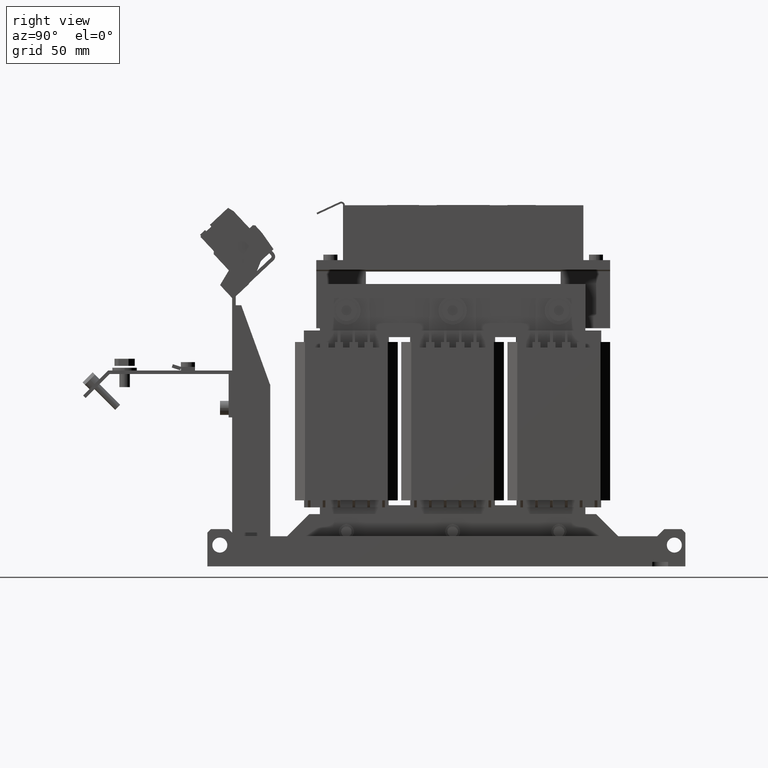
[diagram: clean part render]
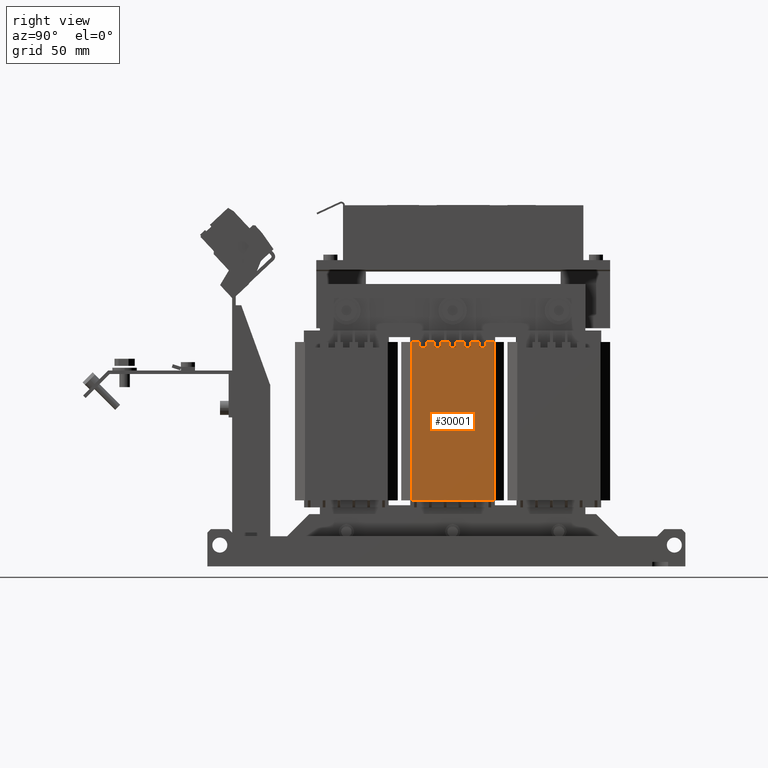
[diagram: same view with one face highlighted and labeled with its STEP entity id]
A machine part, right view. The second image highlights one B-rep face of the part: STEP entity #30001.
In plain terms, the highlighted planar face has unit normal (1, 0, 0).
Its self-contained STEP definition (entity closure, byte-faithful):
#14760=DIRECTION('',(0.E0,1.E0,0.E0));
#14761=VECTOR('',#14760,4.691967361942E0);
#14762=CARTESIAN_POINT('',(4.369999999995E1,-1.984196736194E1,1.242E2));
#14763=LINE('',#14762,#14761);
#14872=DIRECTION('',(0.E0,1.E0,0.E0));
#14873=VECTOR('',#14872,4.691967361942E0);
#14874=CARTESIAN_POINT('',(4.369999999995E1,2.215E1,1.242E2));
#14875=LINE('',#14874,#14873);
#14888=DIRECTION('',(0.E0,1.E0,0.E0));
#14889=VECTOR('',#14888,4.7E0);
#14890=CARTESIAN_POINT('',(4.369999999995E1,1.375E1,1.242E2));
#14891=LINE('',#14890,#14889);
#14904=DIRECTION('',(0.E0,1.E0,0.E0));
#14905=VECTOR('',#14904,4.7E0);
#14906=CARTESIAN_POINT('',(4.369999999995E1,5.35E0,1.242E2));
#14907=LINE('',#14906,#14905);
#14920=DIRECTION('',(0.E0,1.E0,0.E0));
#14921=VECTOR('',#14920,4.7E0);
#14922=CARTESIAN_POINT('',(4.369999999995E1,-3.05E0,1.242E2));
#14923=LINE('',#14922,#14921);
#14936=DIRECTION('',(0.E0,1.E0,0.E0));
#14937=VECTOR('',#14936,4.7E0);
#14938=CARTESIAN_POINT('',(4.369999999995E1,-1.145E1,1.242E2));
#14939=LINE('',#14938,#14937);
#16568=DIRECTION('',(0.E0,1.E0,0.E0));
#16569=VECTOR('',#16568,4.668393472388E1);
#16570=CARTESIAN_POINT('',(4.369999999995E1,-1.984196736194E1,3.48E1));
#16571=LINE('',#16570,#16569);
#19240=DIRECTION('',(0.E0,1.E0,0.E0));
#19241=VECTOR('',#19240,3.7E0);
#19242=CARTESIAN_POINT('',(4.369999999995E1,-1.515E1,1.21E2));
#19243=LINE('',#19242,#19241);
#19244=DIRECTION('',(0.E0,0.E0,-1.E0));
#19245=VECTOR('',#19244,3.2E0);
#19246=CARTESIAN_POINT('',(4.369999999995E1,-1.145E1,1.242E2));
#19247=LINE('',#19246,#19245);
#19248=DIRECTION('',(0.E0,0.E0,-1.E0));
#19249=VECTOR('',#19248,3.2E0);
#19250=CARTESIAN_POINT('',(4.369999999995E1,-6.75E0,1.242E2));
#19251=LINE('',#19250,#19249);
#19252=DIRECTION('',(0.E0,1.E0,0.E0));
#19253=VECTOR('',#19252,3.7E0);
#19254=CARTESIAN_POINT('',(4.369999999995E1,-6.75E0,1.21E2));
#19255=LINE('',#19254,#19253);
#19256=DIRECTION('',(0.E0,0.E0,-1.E0));
#19257=VECTOR('',#19256,3.2E0);
#19258=CARTESIAN_POINT('',(4.369999999995E1,-3.05E0,1.242E2));
#19259=LINE('',#19258,#19257);
#19260=DIRECTION('',(0.E0,0.E0,-1.E0));
#19261=VECTOR('',#19260,3.2E0);
#19262=CARTESIAN_POINT('',(4.369999999995E1,1.65E0,1.242E2));
#19263=LINE('',#19262,#19261);
#19264=DIRECTION('',(0.E0,1.E0,0.E0));
#19265=VECTOR('',#19264,3.7E0);
#19266=CARTESIAN_POINT('',(4.369999999995E1,1.65E0,1.21E2));
#19267=LINE('',#19266,#19265);
#19268=DIRECTION('',(0.E0,0.E0,-1.E0));
#19269=VECTOR('',#19268,3.2E0);
#19270=CARTESIAN_POINT('',(4.369999999995E1,5.35E0,1.242E2));
#19271=LINE('',#19270,#19269);
#19272=DIRECTION('',(0.E0,0.E0,-1.E0));
#19273=VECTOR('',#19272,3.2E0);
#19274=CARTESIAN_POINT('',(4.369999999995E1,1.005E1,1.242E2));
#19275=LINE('',#19274,#19273);
#19276=DIRECTION('',(0.E0,1.E0,0.E0));
#19277=VECTOR('',#19276,3.7E0);
#19278=CARTESIAN_POINT('',(4.369999999995E1,1.005E1,1.21E2));
#19279=LINE('',#19278,#19277);
#19280=DIRECTION('',(0.E0,0.E0,-1.E0));
#19281=VECTOR('',#19280,3.2E0);
#19282=CARTESIAN_POINT('',(4.369999999995E1,1.375E1,1.242E2));
#19283=LINE('',#19282,#19281);
#19284=DIRECTION('',(0.E0,0.E0,-1.E0));
#19285=VECTOR('',#19284,3.2E0);
#19286=CARTESIAN_POINT('',(4.369999999995E1,1.845E1,1.242E2));
#19287=LINE('',#19286,#19285);
#19288=DIRECTION('',(0.E0,1.E0,0.E0));
#19289=VECTOR('',#19288,3.7E0);
#19290=CARTESIAN_POINT('',(4.369999999995E1,1.845E1,1.21E2));
#19291=LINE('',#19290,#19289);
#19292=DIRECTION('',(0.E0,0.E0,-1.E0));
#19293=VECTOR('',#19292,3.2E0);
#19294=CARTESIAN_POINT('',(4.369999999995E1,2.215E1,1.242E2));
#19295=LINE('',#19294,#19293);
#19296=DIRECTION('',(0.E0,0.E0,-1.E0));
#19297=VECTOR('',#19296,8.94E1);
#19298=CARTESIAN_POINT('',(4.369999999995E1,-1.984196736194E1,1.242E2));
#19299=LINE('',#19298,#19297);
#19300=DIRECTION('',(0.E0,0.E0,-1.E0));
#19301=VECTOR('',#19300,3.2E0);
#19302=CARTESIAN_POINT('',(4.369999999995E1,-1.515E1,1.242E2));
#19303=LINE('',#19302,#19301);
#19344=DIRECTION('',(0.E0,0.E0,-1.E0));
#19345=VECTOR('',#19344,8.94E1);
#19346=CARTESIAN_POINT('',(4.369999999995E1,2.684196736194E1,1.242E2));
#19347=LINE('',#19346,#19345);
#21416=CARTESIAN_POINT('',(4.369999999995E1,-1.984196736194E1,1.242E2));
#21417=VERTEX_POINT('',#21416);
#21418=CARTESIAN_POINT('',(4.369999999995E1,2.684196736194E1,1.242E2));
#21420=VERTEX_POINT('',#21418);
#21454=CARTESIAN_POINT('',(4.369999999995E1,-1.984196736194E1,3.48E1));
#21455=CARTESIAN_POINT('',(4.369999999995E1,2.684196736194E1,3.48E1));
#21456=VERTEX_POINT('',#21454);
#21457=VERTEX_POINT('',#21455);
#22490=CARTESIAN_POINT('',(4.369999999995E1,-1.145E1,1.242E2));
#22491=VERTEX_POINT('',#22490);
#22492=CARTESIAN_POINT('',(4.369999999995E1,-1.515E1,1.242E2));
#22493=VERTEX_POINT('',#22492);
#22494=CARTESIAN_POINT('',(4.369999999995E1,-3.05E0,1.242E2));
#22495=VERTEX_POINT('',#22494);
#22496=CARTESIAN_POINT('',(4.369999999995E1,-6.75E0,1.242E2));
#22497=VERTEX_POINT('',#22496);
#22498=CARTESIAN_POINT('',(4.369999999995E1,5.35E0,1.242E2));
#22499=VERTEX_POINT('',#22498);
#22500=CARTESIAN_POINT('',(4.369999999995E1,1.65E0,1.242E2));
#22501=VERTEX_POINT('',#22500);
#22502=CARTESIAN_POINT('',(4.369999999995E1,1.375E1,1.242E2));
#22503=VERTEX_POINT('',#22502);
#22504=CARTESIAN_POINT('',(4.369999999995E1,1.005E1,1.242E2));
#22505=VERTEX_POINT('',#22504);
#22506=CARTESIAN_POINT('',(4.369999999995E1,2.215E1,1.242E2));
#22507=VERTEX_POINT('',#22506);
#22508=CARTESIAN_POINT('',(4.369999999995E1,1.845E1,1.242E2));
#22509=VERTEX_POINT('',#22508);
#22550=CARTESIAN_POINT('',(4.369999999995E1,-1.515E1,1.21E2));
#22551=CARTESIAN_POINT('',(4.369999999995E1,-1.145E1,1.21E2));
#22552=VERTEX_POINT('',#22550);
#22553=VERTEX_POINT('',#22551);
#22554=CARTESIAN_POINT('',(4.369999999995E1,-6.75E0,1.21E2));
#22555=CARTESIAN_POINT('',(4.369999999995E1,-3.05E0,1.21E2));
#22556=VERTEX_POINT('',#22554);
#22557=VERTEX_POINT('',#22555);
#22558=CARTESIAN_POINT('',(4.369999999995E1,1.65E0,1.21E2));
#22559=CARTESIAN_POINT('',(4.369999999995E1,5.35E0,1.21E2));
#22560=VERTEX_POINT('',#22558);
#22561=VERTEX_POINT('',#22559);
#22562=CARTESIAN_POINT('',(4.369999999995E1,1.005E1,1.21E2));
#22563=CARTESIAN_POINT('',(4.369999999995E1,1.375E1,1.21E2));
#22564=VERTEX_POINT('',#22562);
#22565=VERTEX_POINT('',#22563);
#22566=CARTESIAN_POINT('',(4.369999999995E1,1.845E1,1.21E2));
#22567=CARTESIAN_POINT('',(4.369999999995E1,2.215E1,1.21E2));
#22568=VERTEX_POINT('',#22566);
#22569=VERTEX_POINT('',#22567);
#29954=CARTESIAN_POINT('',(4.369999999995E1,-1.984196736194E1,1.242E2));
#29955=DIRECTION('',(1.E0,0.E0,0.E0));
#29956=DIRECTION('',(0.E0,1.E0,0.E0));
#29957=AXIS2_PLACEMENT_3D('',#29954,#29955,#29956);
#29958=PLANE('',#29957);
#29960=ORIENTED_EDGE('',*,*,#29959,.T.);
#29962=ORIENTED_EDGE('',*,*,#29961,.F.);
#29963=ORIENTED_EDGE('',*,*,#23925,.T.);
#29965=ORIENTED_EDGE('',*,*,#29964,.T.);
#29967=ORIENTED_EDGE('',*,*,#29966,.T.);
#29969=ORIENTED_EDGE('',*,*,#29968,.F.);
#29970=ORIENTED_EDGE('',*,*,#23917,.T.);
#29972=ORIENTED_EDGE('',*,*,#29971,.T.);
#29974=ORIENTED_EDGE('',*,*,#29973,.T.);
#29976=ORIENTED_EDGE('',*,*,#29975,.F.);
#29977=ORIENTED_EDGE('',*,*,#23909,.T.);
#29979=ORIENTED_EDGE('',*,*,#29978,.T.);
#29981=ORIENTED_EDGE('',*,*,#29980,.T.);
#29983=ORIENTED_EDGE('',*,*,#29982,.F.);
#29984=ORIENTED_EDGE('',*,*,#23901,.T.);
#29986=ORIENTED_EDGE('',*,*,#29985,.T.);
#29988=ORIENTED_EDGE('',*,*,#29987,.T.);
#29990=ORIENTED_EDGE('',*,*,#29989,.F.);
#29991=ORIENTED_EDGE('',*,*,#23893,.T.);
#29993=ORIENTED_EDGE('',*,*,#29992,.T.);
#29994=ORIENTED_EDGE('',*,*,#24935,.F.);
#29995=ORIENTED_EDGE('',*,*,#29949,.F.);
#29996=ORIENTED_EDGE('',*,*,#23837,.T.);
#29998=ORIENTED_EDGE('',*,*,#29997,.T.);
#29999=EDGE_LOOP('',(#29960,#29962,#29963,#29965,#29967,#29969,#29970,#29972,
#29974,#29976,#29977,#29979,#29981,#29983,#29984,#29986,#29988,#29990,#29991,
#29993,#29994,#29995,#29996,#29998));
#30000=FACE_OUTER_BOUND('',#29999,.F.);
#30001=ADVANCED_FACE('',(#30000),#29958,.T.);
#23837=EDGE_CURVE('',#21417,#22493,#14763,.T.);
#23893=EDGE_CURVE('',#22507,#21420,#14875,.T.);
#23901=EDGE_CURVE('',#22503,#22509,#14891,.T.);
#23909=EDGE_CURVE('',#22499,#22505,#14907,.T.);
#23917=EDGE_CURVE('',#22495,#22501,#14923,.T.);
#23925=EDGE_CURVE('',#22491,#22497,#14939,.T.);
#24935=EDGE_CURVE('',#21456,#21457,#16571,.T.);
#29949=EDGE_CURVE('',#21417,#21456,#19299,.T.);
#29959=EDGE_CURVE('',#22552,#22553,#19243,.T.);
#29961=EDGE_CURVE('',#22491,#22553,#19247,.T.);
#29964=EDGE_CURVE('',#22497,#22556,#19251,.T.);
#29966=EDGE_CURVE('',#22556,#22557,#19255,.T.);
#29968=EDGE_CURVE('',#22495,#22557,#19259,.T.);
#29971=EDGE_CURVE('',#22501,#22560,#19263,.T.);
#29973=EDGE_CURVE('',#22560,#22561,#19267,.T.);
#29975=EDGE_CURVE('',#22499,#22561,#19271,.T.);
#29978=EDGE_CURVE('',#22505,#22564,#19275,.T.);
#29980=EDGE_CURVE('',#22564,#22565,#19279,.T.);
#29982=EDGE_CURVE('',#22503,#22565,#19283,.T.);
#29985=EDGE_CURVE('',#22509,#22568,#19287,.T.);
#29987=EDGE_CURVE('',#22568,#22569,#19291,.T.);
#29989=EDGE_CURVE('',#22507,#22569,#19295,.T.);
#29992=EDGE_CURVE('',#21420,#21457,#19347,.T.);
#29997=EDGE_CURVE('',#22493,#22552,#19303,.T.);